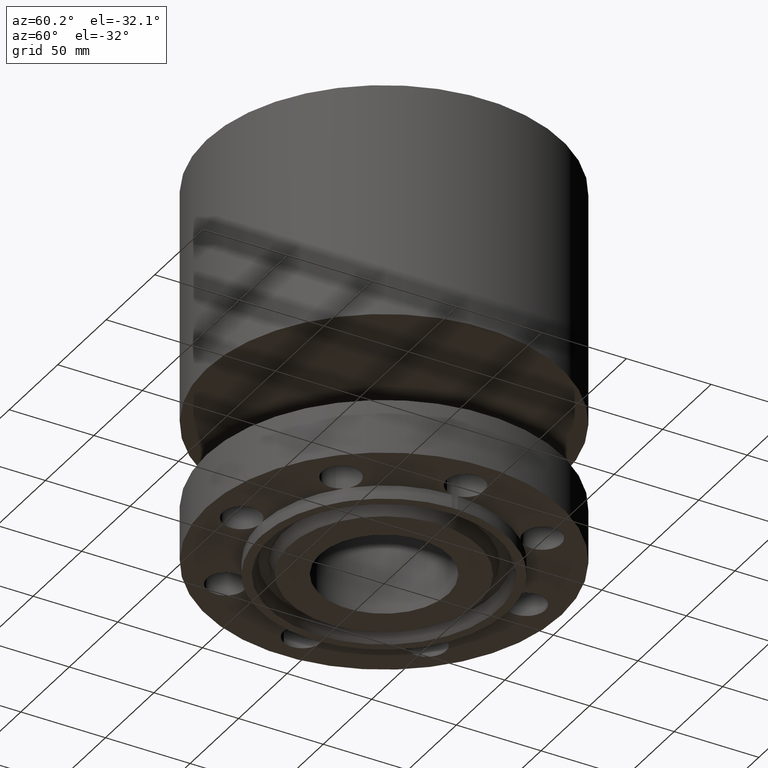
[diagram: clean part render]
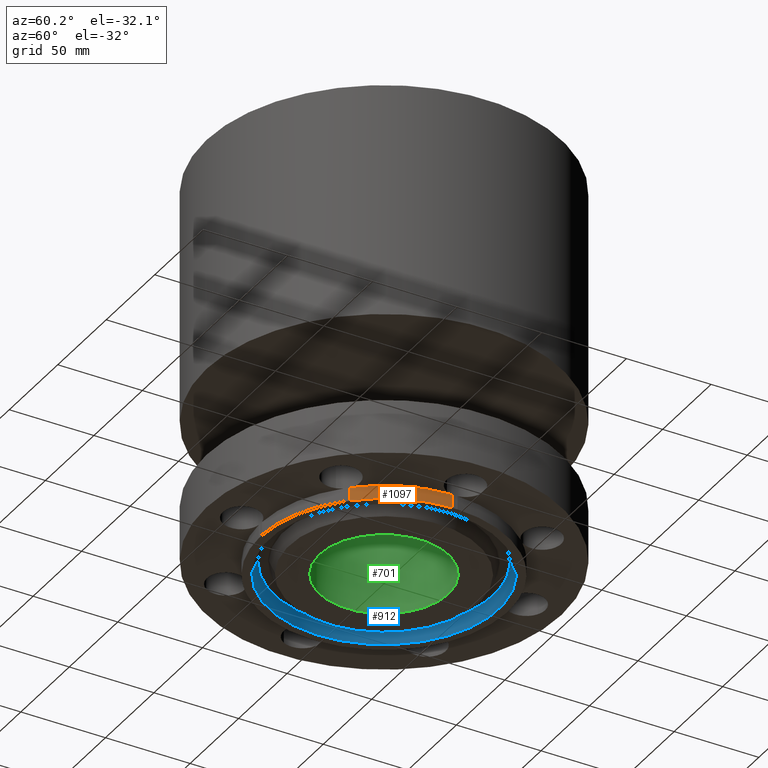
[diagram: same view with three faces highlighted in distinct colors, each labeled with its STEP entity id]
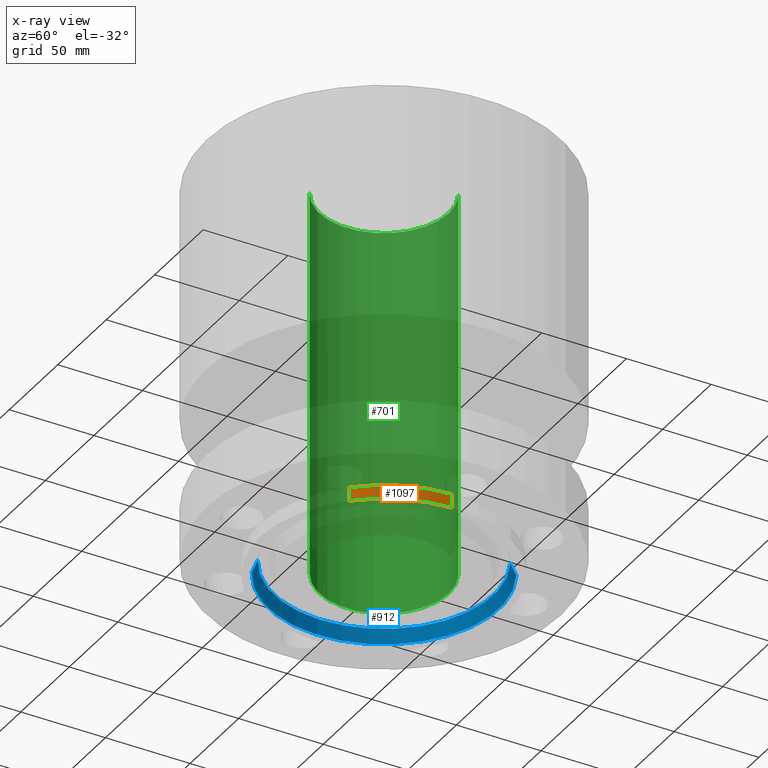
[diagram: x-ray of the same camera — body ghosted, the three highlighted faces saturated]
A machine part, auxiliary view with three faces highlighted in distinct colors.
The next image is the same camera in x-ray (body ghosted, the three faces saturated) — at least one of them is partly hidden behind the body in this view.
Their STEP definitions:

[orange] entity #1097 — the highlighted cylindrical surface (partial cylindrical patch) has radius 73.025 mm, axis along (0, 0, -1).
#165=AXIS2_PLACEMENT_3D('Circle Axis2P3D',#163,#164,$) ;
#1041=AXIS2_PLACEMENT_3D('Circle Axis2P3D',#1039,#1040,$) ;
#1079=AXIS2_PLACEMENT_3D('Cylinder Axis2P3D',#1076,#1077,#1078) ;
#160=CARTESIAN_POINT('Vertex',(2.07605138692,-1.98887798493,0.)) ;
#163=CARTESIAN_POINT('Axis2P3D Location',(0.,0.,0.)) ;
#167=CARTESIAN_POINT('Vertex',(2.87433912388,-0.0616409036851,5.59482469102E-016)) ;
#1036=CARTESIAN_POINT('Vertex',(2.87433912388,-0.0616409036851,-0.313000000001)) ;
#1039=CARTESIAN_POINT('Axis2P3D Location',(0.,0.,-0.313000000001)) ;
#1043=CARTESIAN_POINT('Vertex',(2.07605138692,-1.98887798493,-0.313000000001)) ;
#1076=CARTESIAN_POINT('Axis2P3D Location',(0.,0.,4.21850000002)) ;
#1081=CARTESIAN_POINT('Line Origine',(2.87433912388,-0.0616409036851,-0.156500000001)) ;
#1086=CARTESIAN_POINT('Line Origine',(2.07605138692,-1.98887798493,-0.156500000001)) ;
#164=DIRECTION('Axis2P3D Direction',(0.,0.,-0.0393700787402)) ;
#1040=DIRECTION('Axis2P3D Direction',(0.,0.,-0.0393700787402)) ;
#1077=DIRECTION('Axis2P3D Direction',(0.,0.,-0.0393700787402)) ;
#1078=DIRECTION('Axis2P3D XDirection',(0.0284293240248,0.0272355766508,0.)) ;
#1082=DIRECTION('Vector Direction',(0.,0.,-0.0393700787402)) ;
#1087=DIRECTION('Vector Direction',(0.,0.,-0.0393700787402)) ;
#1083=VECTOR('Line Direction',#1082,0.0393700787402) ;
#1088=VECTOR('Line Direction',#1087,0.0393700787402) ;
#1092=ORIENTED_EDGE('',*,*,#1045,.F.) ;
#1093=ORIENTED_EDGE('',*,*,#1085,.F.) ;
#1094=ORIENTED_EDGE('',*,*,#169,.T.) ;
#1095=ORIENTED_EDGE('',*,*,#1090,.T.) ;
#1097=ADVANCED_FACE('PartBody',(#1096),#1080,.T.) ;
#166=CIRCLE('generated circle',#165,2.87500000001) ;
#1042=CIRCLE('generated circle',#1041,2.87500000001) ;
#1080=CYLINDRICAL_SURFACE('generated cylinder',#1079,2.87500000001) ;
#169=EDGE_CURVE('',#168,#161,#166,.T.) ;
#1045=EDGE_CURVE('',#1037,#1044,#1042,.T.) ;
#1085=EDGE_CURVE('',#168,#1037,#1084,.T.) ;
#1090=EDGE_CURVE('',#161,#1044,#1089,.T.) ;
#1091=EDGE_LOOP('',(#1092,#1093,#1094,#1095)) ;
#1096=FACE_OUTER_BOUND('',#1091,.T.) ;
#1084=LINE('Line',#1081,#1083) ;
#1089=LINE('Line',#1086,#1088) ;
#161=VERTEX_POINT('',#160) ;
#168=VERTEX_POINT('',#167) ;
#1037=VERTEX_POINT('',#1036) ;
#1044=VERTEX_POINT('',#1043) ;

[blue] entity #912 — the highlighted conical surface has half-angle 23 deg.
#853=AXIS2_PLACEMENT_3D('Circle Axis2P3D',#851,#852,$) ;
#885=AXIS2_PLACEMENT_3D('Cone Axis2P3D',#882,#883,#884) ;
#896=AXIS2_PLACEMENT_3D('Circle Axis2P3D',#894,#895,$) ;
#848=CARTESIAN_POINT('Vertex',(-1.22117191556,-2.23534019754,-0.0188873350169)) ;
#851=CARTESIAN_POINT('Axis2P3D Location',(0.,0.,-0.0188873350169)) ;
#855=CARTESIAN_POINT('Vertex',(1.22117191556,2.23534019754,-0.0188873350169)) ;
#882=CARTESIAN_POINT('Axis2P3D Location',(0.,0.,-0.0188873350169)) ;
#887=CARTESIAN_POINT('Line Origine',(-1.25109847736,-2.29012040146,-0.165943667509)) ;
#891=CARTESIAN_POINT('Vertex',(-1.28102503916,-2.34490060538,-0.313000000001)) ;
#894=CARTESIAN_POINT('Axis2P3D Location',(0.,0.,-0.313000000001)) ;
#898=CARTESIAN_POINT('Vertex',(1.28102503916,2.34490060538,-0.313000000001)) ;
#901=CARTESIAN_POINT('Line Origine',(1.25109847736,2.29012040146,-0.165943667509)) ;
#852=DIRECTION('Axis2P3D Direction',(0.,0.,-0.0393700787402)) ;
#883=DIRECTION('Axis2P3D Direction',(0.,0.,-0.0393700787402)) ;
#884=DIRECTION('Axis2P3D XDirection',(0.0188750212049,0.0345504945626,0.)) ;
#888=DIRECTION('Vector Direction',(-0.00737505833565,-0.0134999537303,-0.0362403485611)) ;
#895=DIRECTION('Axis2P3D Direction',(0.,0.,-0.0393700787402)) ;
#902=DIRECTION('Vector Direction',(0.00737505833565,0.0134999537303,-0.0362403485611)) ;
#889=VECTOR('Line Direction',#888,0.0393700787402) ;
#903=VECTOR('Line Direction',#902,0.0393700787402) ;
#907=ORIENTED_EDGE('',*,*,#857,.F.) ;
#908=ORIENTED_EDGE('',*,*,#893,.T.) ;
#909=ORIENTED_EDGE('',*,*,#900,.T.) ;
#910=ORIENTED_EDGE('',*,*,#905,.F.) ;
#912=ADVANCED_FACE('PartBody',(#911),#886,.F.) ;
#854=CIRCLE('generated circle',#853,2.5471565806) ;
#897=CIRCLE('generated circle',#896,2.67200000001) ;
#886=CONICAL_SURFACE('Cone',#885,2.5471565806,0.401425727959) ;
#857=EDGE_CURVE('',#849,#856,#854,.T.) ;
#893=EDGE_CURVE('',#849,#892,#890,.T.) ;
#900=EDGE_CURVE('',#892,#899,#897,.T.) ;
#905=EDGE_CURVE('',#856,#899,#904,.T.) ;
#906=EDGE_LOOP('',(#907,#908,#909,#910)) ;
#911=FACE_OUTER_BOUND('',#906,.T.) ;
#890=LINE('Line',#887,#889) ;
#904=LINE('Line',#901,#903) ;
#849=VERTEX_POINT('',#848) ;
#856=VERTEX_POINT('',#855) ;
#892=VERTEX_POINT('',#891) ;
#899=VERTEX_POINT('',#898) ;

[green] entity #701 — the highlighted cylindrical surface (partial cylindrical patch) has radius 38.1 mm, axis along (0, 0, -1).
#642=AXIS2_PLACEMENT_3D('Circle Axis2P3D',#640,#641,$) ;
#662=AXIS2_PLACEMENT_3D('Cylinder Axis2P3D',#659,#660,#661) ;
#692=AXIS2_PLACEMENT_3D('Circle Axis2P3D',#690,#691,$) ;
#640=CARTESIAN_POINT('Axis2P3D Location',(0.,0.,8.75000000003)) ;
#644=CARTESIAN_POINT('Vertex',(-0.719138307909,-1.31637384284,8.75000000003)) ;
#646=CARTESIAN_POINT('Vertex',(0.719138307909,1.31637384284,8.75000000003)) ;
#659=CARTESIAN_POINT('Axis2P3D Location',(0.,0.,4.21850000002)) ;
#664=CARTESIAN_POINT('Line Origine',(0.719138307909,1.31637384284,4.21850000002)) ;
#668=CARTESIAN_POINT('Vertex',(0.719138307909,1.31637384284,-0.313000000001)) ;
#675=CARTESIAN_POINT('Vertex',(-0.719138307909,-1.31637384284,-0.313000000001)) ;
#678=CARTESIAN_POINT('Line Origine',(-0.719138307909,-1.31637384284,4.21850000002)) ;
#690=CARTESIAN_POINT('Axis2P3D Location',(0.,0.,-0.313000000001)) ;
#641=DIRECTION('Axis2P3D Direction',(0.,0.,-0.0393700787402)) ;
#660=DIRECTION('Axis2P3D Direction',(0.,0.,-0.0393700787402)) ;
#661=DIRECTION('Axis2P3D XDirection',(-0.0188750212049,-0.0345504945626,0.)) ;
#665=DIRECTION('Vector Direction',(0.,0.,-0.0393700787402)) ;
#679=DIRECTION('Vector Direction',(0.,0.,-0.0393700787402)) ;
#691=DIRECTION('Axis2P3D Direction',(0.,0.,-0.0393700787402)) ;
#666=VECTOR('Line Direction',#665,0.0393700787402) ;
#680=VECTOR('Line Direction',#679,0.0393700787402) ;
#696=ORIENTED_EDGE('',*,*,#648,.F.) ;
#697=ORIENTED_EDGE('',*,*,#682,.T.) ;
#698=ORIENTED_EDGE('',*,*,#694,.T.) ;
#699=ORIENTED_EDGE('',*,*,#670,.F.) ;
#701=ADVANCED_FACE('PartBody',(#700),#663,.F.) ;
#643=CIRCLE('generated circle',#642,1.50000000001) ;
#693=CIRCLE('generated circle',#692,1.50000000001) ;
#663=CYLINDRICAL_SURFACE('generated cylinder',#662,1.50000000001) ;
#648=EDGE_CURVE('',#645,#647,#643,.T.) ;
#670=EDGE_CURVE('',#647,#669,#667,.T.) ;
#682=EDGE_CURVE('',#645,#676,#681,.T.) ;
#694=EDGE_CURVE('',#676,#669,#693,.T.) ;
#695=EDGE_LOOP('',(#696,#697,#698,#699)) ;
#700=FACE_OUTER_BOUND('',#695,.T.) ;
#667=LINE('Line',#664,#666) ;
#681=LINE('Line',#678,#680) ;
#645=VERTEX_POINT('',#644) ;
#647=VERTEX_POINT('',#646) ;
#669=VERTEX_POINT('',#668) ;
#676=VERTEX_POINT('',#675) ;